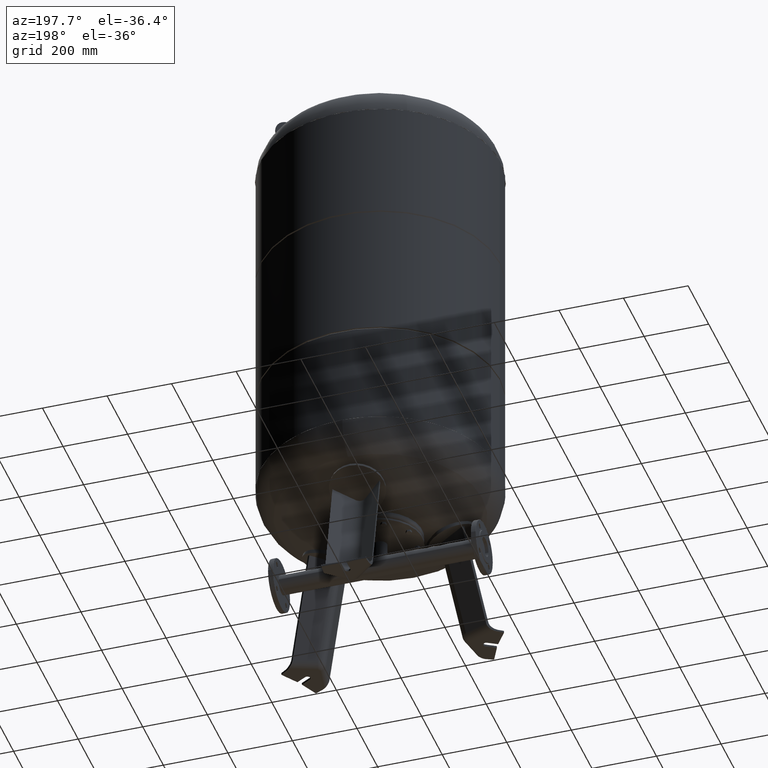
[diagram: clean part render]
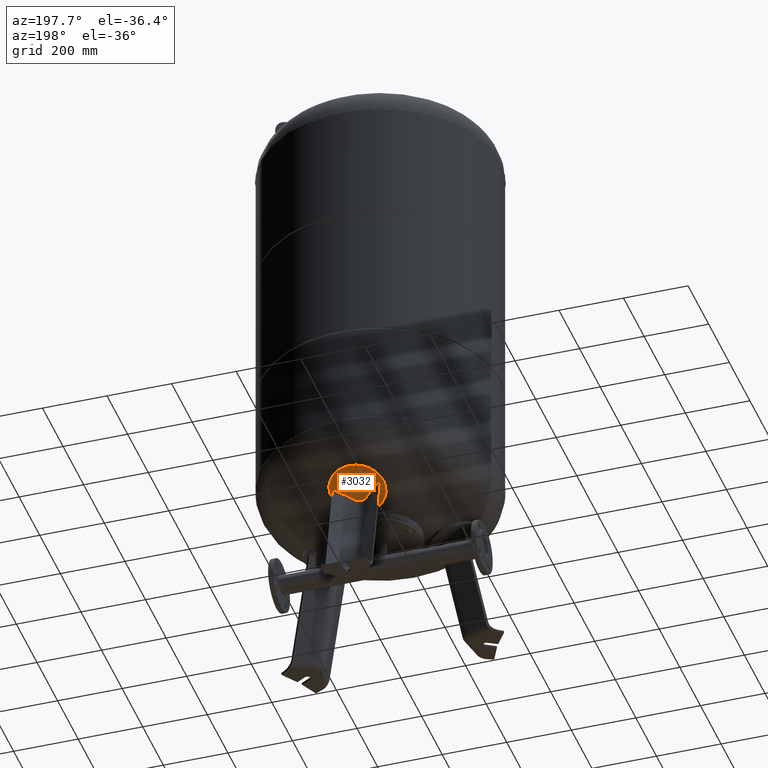
[diagram: same view with one face highlighted and labeled with its STEP entity id]
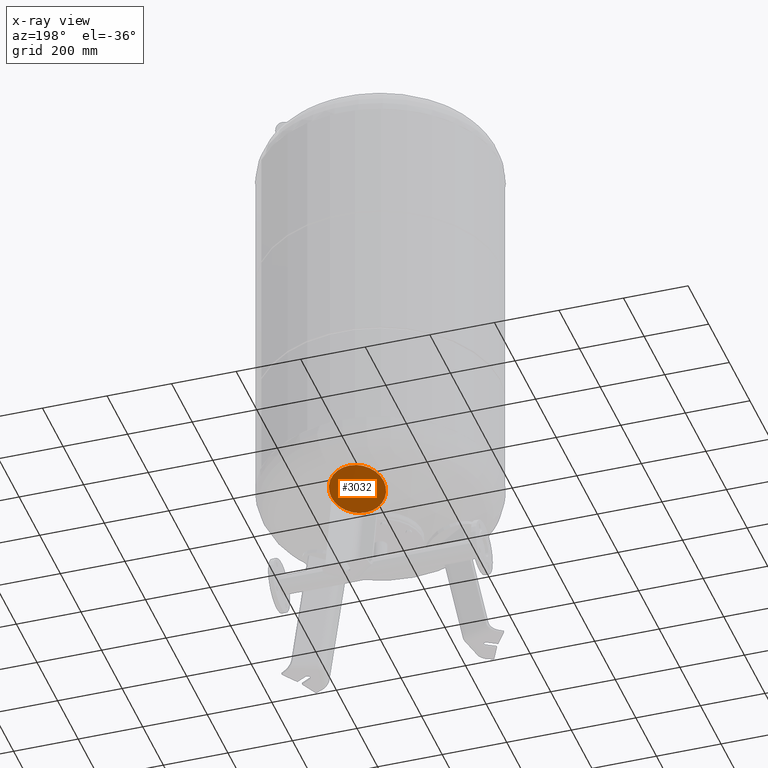
[diagram: x-ray of the same camera — body ghosted, the highlighted face saturated]
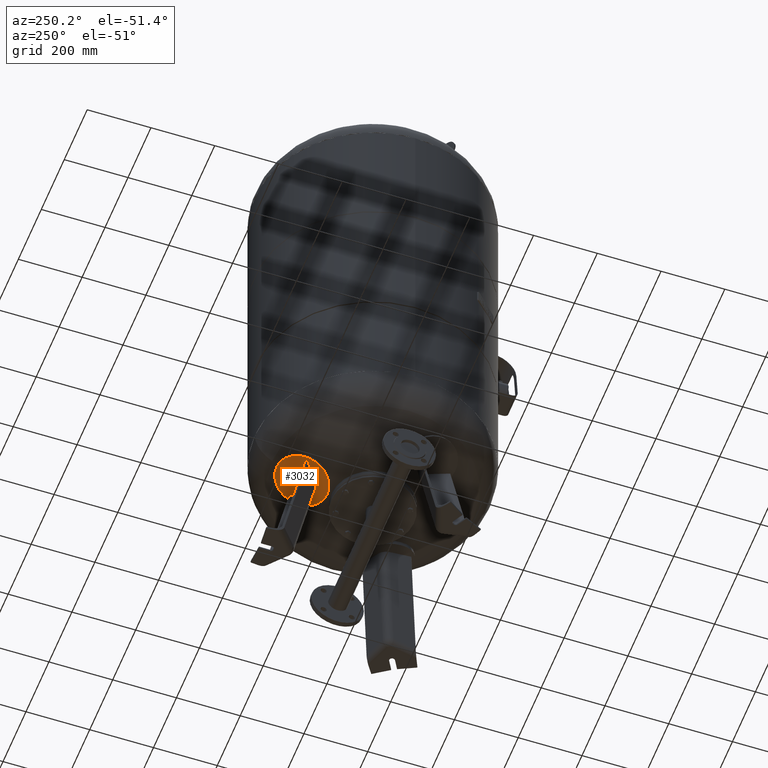
[diagram: same view with one face highlighted and labeled with its STEP entity id]
A machine part, auxiliary view. The second image highlights one B-rep face of the part: STEP entity #3032.
The next image is the same camera in x-ray: the body ghosted, the highlighted face saturated — about 0% of this face is hidden behind the body in this view.
A second angle (auxiliary view) of the same face is appended — the face is thin or edge-on in the first view.
In plain terms, the highlighted spherical surface has radius 594 mm.
Its self-contained STEP definition (entity closure, byte-faithful):
#2940=CARTESIAN_POINT('',(0.000000156607026,301.827032119546740,393.757372581269070));
#2941=VERTEX_POINT('',#2940);
#2950=CARTESIAN_POINT('',(0.000000156606966,143.118359615022430,332.834821158567990));
#2951=VERTEX_POINT('',#2950);
#2952=CARTESIAN_POINT('',(0.000000156607002,222.472695867284590,363.296096869918470));
#2953=DIRECTION('',(-5.681491E-017,0.358367949545300,-0.933580426497202));
#2954=DIRECTION('',(2.858266E-016,0.933580426497202,0.358367949545300));
#2955=AXIS2_PLACEMENT_3D('',#2952,#2953,#2954);
#2956=CIRCLE('',#2955,85.0);
#2957=EDGE_CURVE('',#2951,#2941,#2956,.T.);
#3013=CARTESIAN_POINT('',(0.000000156607002,222.472695867284590,363.296096869918470));
#3014=DIRECTION('',(-5.681491E-017,0.358367949545300,-0.933580426497202));
#3015=DIRECTION('',(2.858266E-016,0.933580426497202,0.358367949545300));
#3016=AXIS2_PLACEMENT_3D('',#3013,#3014,#3015);
#3017=CIRCLE('',#3016,85.0);
#3018=EDGE_CURVE('',#2941,#2951,#3017,.T.);
#3023=CARTESIAN_POINT('',(0.000000156607029,11.792875141696015,912.135793993800230));
#3024=DIRECTION('',(1.0,0.0,0.0));
#3025=DIRECTION('',(2.858266E-016,0.933580426497202,0.358367949545300));
#3026=AXIS2_PLACEMENT_3D('',#3023,#3024,#3025);
#3027=SPHERICAL_SURFACE('',#3026,594.0);
#3028=ORIENTED_EDGE('',*,*,#3018,.T.);
#3029=ORIENTED_EDGE('',*,*,#2957,.T.);
#3030=EDGE_LOOP('',(#3028,#3029));
#3031=FACE_OUTER_BOUND('',#3030,.T.);
#3032=ADVANCED_FACE('',(#3031),#3027,.T.);